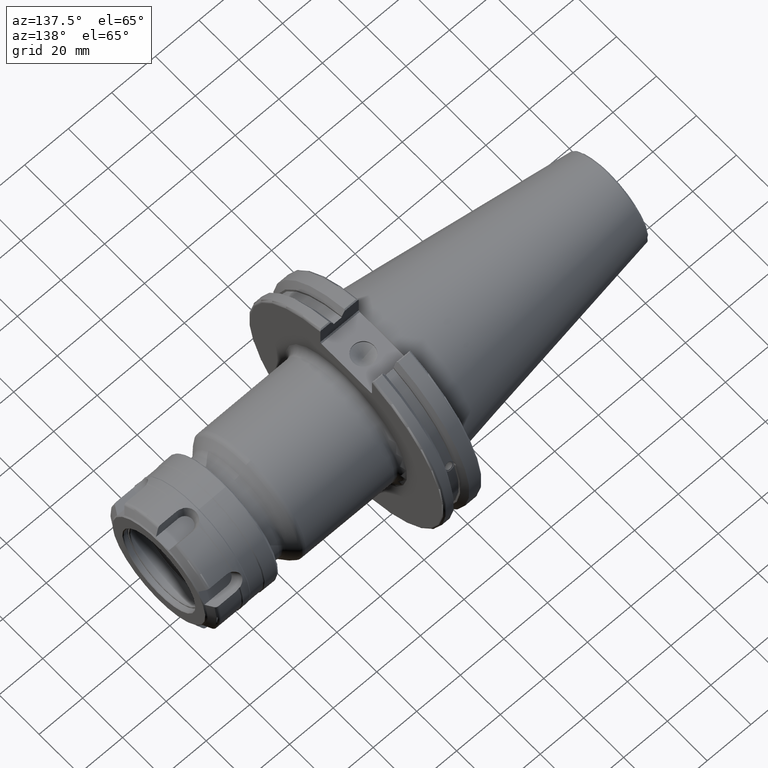
[diagram: clean part render]
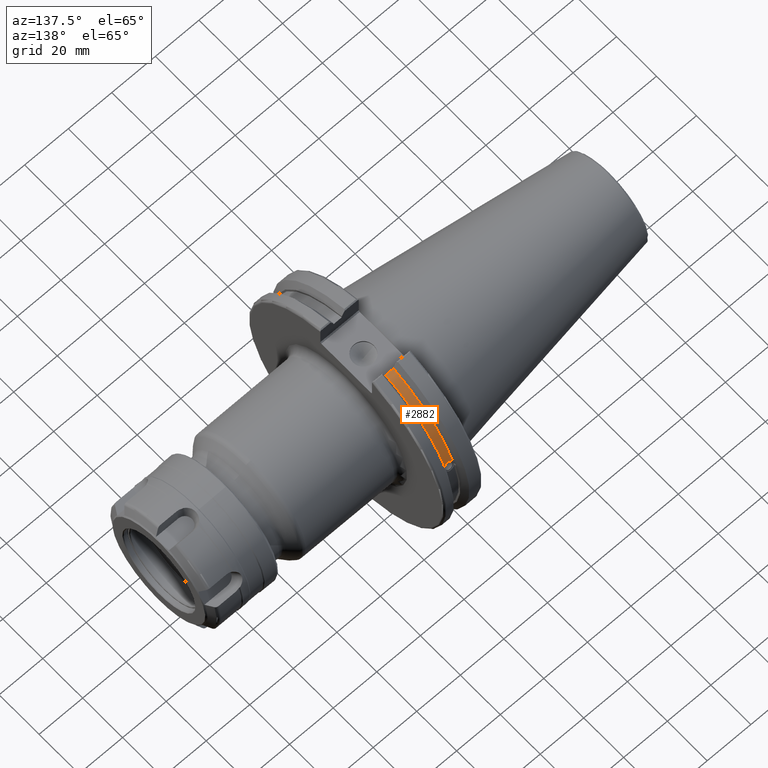
[diagram: same view with one face highlighted and labeled with its STEP entity id]
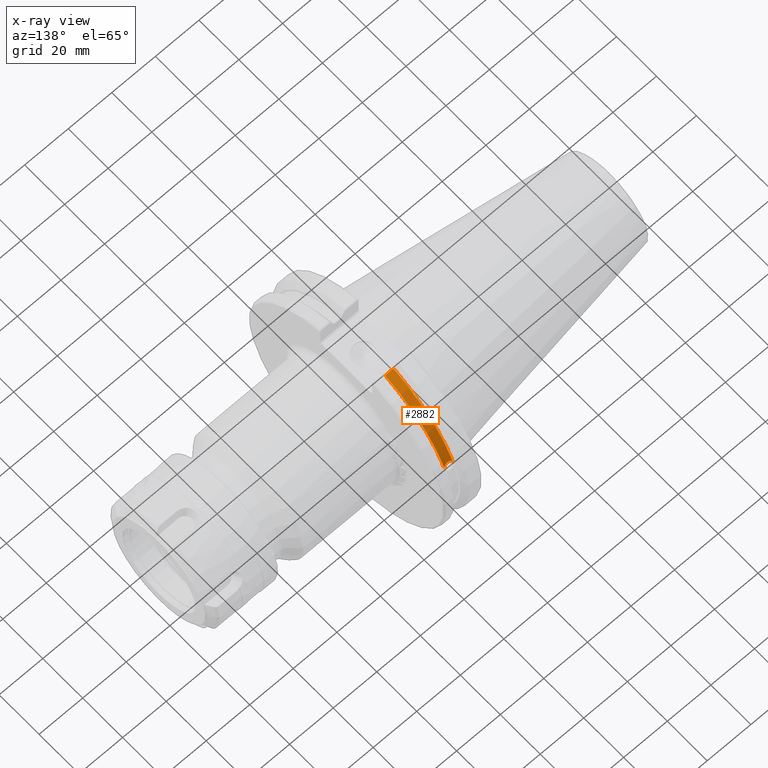
[diagram: x-ray of the same camera — body ghosted, the highlighted face saturated]
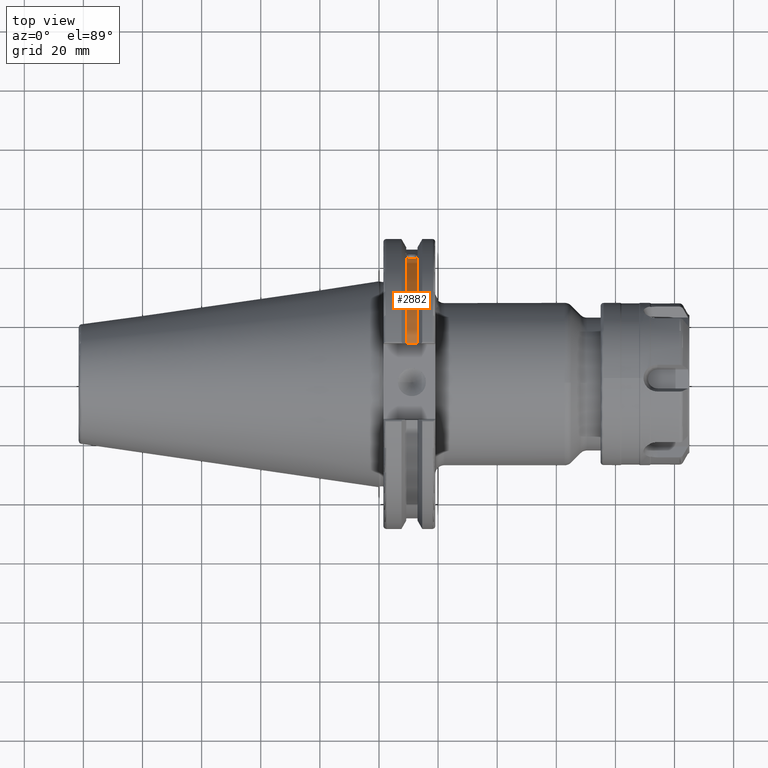
[diagram: same view with one face highlighted and labeled with its STEP entity id]
A machine part, auxiliary view. The second image highlights one B-rep face of the part: STEP entity #2882.
The next image is the same camera in x-ray: the body ghosted, the highlighted face saturated — about 0% of this face is hidden behind the body in this view.
A second angle (top view) of the same face is appended — the face is thin or edge-on in the first view.
In plain terms, the highlighted cylindrical surface (partial cylindrical patch) has radius 45.6435 mm, axis along (1, 0, 0).
Its self-contained STEP definition (entity closure, byte-faithful):
#100=B_SPLINE_CURVE_WITH_KNOTS('',3,(#4776,#4777,#4778,#4779,#4780,#4781,
#4782,#4783,#4784,#4785,#4786,#4787,#4788,#4789,#4790),.UNSPECIFIED.,.F.,
 .F.,(4,2,2,3,2,2,4),(-0.231381164054416,-0.158232381135623,-0.0791161905678115,
0.,0.0791161905678115,0.158232381135623,0.231381164054563),
 .UNSPECIFIED.);
#185=CYLINDRICAL_SURFACE('',#3196,45.6435);
#288=LINE('',#5115,#437);
#437=VECTOR('',#3747,10.);
#707=FACE_OUTER_BOUND('',#888,.T.);
#888=EDGE_LOOP('',(#2325,#2326,#2327,#2328));
#1065=CIRCLE('',#3195,45.6435);
#1066=CIRCLE('',#3197,45.6435);
#1238=VERTEX_POINT('',#4773);
#1239=VERTEX_POINT('',#4775);
#1303=VERTEX_POINT('',#5112);
#1304=VERTEX_POINT('',#5114);
#1564=EDGE_CURVE('',#1239,#1238,#100,.T.);
#1663=EDGE_CURVE('',#1304,#1303,#288,.T.);
#1677=EDGE_CURVE('',#1239,#1303,#1065,.T.);
#1678=EDGE_CURVE('',#1238,#1304,#1066,.T.);
#2325=ORIENTED_EDGE('',*,*,#1564,.T.);
#2326=ORIENTED_EDGE('',*,*,#1678,.T.);
#2327=ORIENTED_EDGE('',*,*,#1663,.T.);
#2328=ORIENTED_EDGE('',*,*,#1677,.F.);
#2882=ADVANCED_FACE('',(#707),#185,.T.);
#3195=AXIS2_PLACEMENT_3D('',#5146,#3786,#3787);
#3196=AXIS2_PLACEMENT_3D('',#5147,#3788,#3789);
#3197=AXIS2_PLACEMENT_3D('',#5148,#3790,#3791);
#3747=DIRECTION('',(1.,0.,0.));
#3786=DIRECTION('center_axis',(1.,0.,0.));
#3787=DIRECTION('ref_axis',(0.,0.,-1.));
#3788=DIRECTION('center_axis',(1.,0.,0.));
#3789=DIRECTION('ref_axis',(0.,1.,0.));
#3790=DIRECTION('center_axis',(1.,0.,0.));
#3791=DIRECTION('ref_axis',(0.,0.,-1.));
#4773=CARTESIAN_POINT('',(9.2191,42.5884454651059,16.4180816515115));
#4775=CARTESIAN_POINT('',(13.0491,42.5884454651059,16.4180816515115));
#4776=CARTESIAN_POINT('Ctrl Pts',(13.0491,42.5884454651059,16.4180816515115));
#4777=CARTESIAN_POINT('Ctrl Pts',(12.9428782240206,42.5035323832641,16.6383458840848));
#4778=CARTESIAN_POINT('Ctrl Pts',(12.791391924423,42.4245077186417,16.8380515255915));
#4779=CARTESIAN_POINT('Ctrl Pts',(12.4325949659982,42.2908173017388,17.1712159412199));
#4780=CARTESIAN_POINT('Ctrl Pts',(12.1964796719457,42.2294695309474,17.3208689126276));
#4781=CARTESIAN_POINT('Ctrl Pts',(11.6790940832128,42.1475978938586,17.5191491957165));
#4782=CARTESIAN_POINT('Ctrl Pts',(11.397820635226,42.1271980081205,17.5678194501937));
#4783=CARTESIAN_POINT('Ctrl Pts',(11.1341,42.1271980081205,17.5678194501937));
#4784=CARTESIAN_POINT('Ctrl Pts',(10.870379364774,42.1271980081205,17.5678194501937));
#4785=CARTESIAN_POINT('Ctrl Pts',(10.5891059167872,42.1475978938586,17.5191491957165));
#4786=CARTESIAN_POINT('Ctrl Pts',(10.0717203280543,42.2294695309474,17.3208689126276));
#4787=CARTESIAN_POINT('Ctrl Pts',(9.83560503400179,42.2908173017388,17.1712159412199));
#4788=CARTESIAN_POINT('Ctrl Pts',(9.47680807557666,42.4245077186418,16.8380515255912));
#4789=CARTESIAN_POINT('Ctrl Pts',(9.32532177598177,42.5035323832622,16.6383458840897));
#4790=CARTESIAN_POINT('Ctrl Pts',(9.2191,42.5884454651059,16.4180816515115));
#5112=CARTESIAN_POINT('',(13.0491,12.95,43.7678716897452));
#5114=CARTESIAN_POINT('',(9.2191,12.95,43.7678716897452));
#5115=CARTESIAN_POINT('',(11.1341,12.95,43.7678716897452));
#5146=CARTESIAN_POINT('Origin',(13.0491,0.,0.));
#5147=CARTESIAN_POINT('Origin',(11.1341,0.,0.));
#5148=CARTESIAN_POINT('Origin',(9.2191,0.,0.));